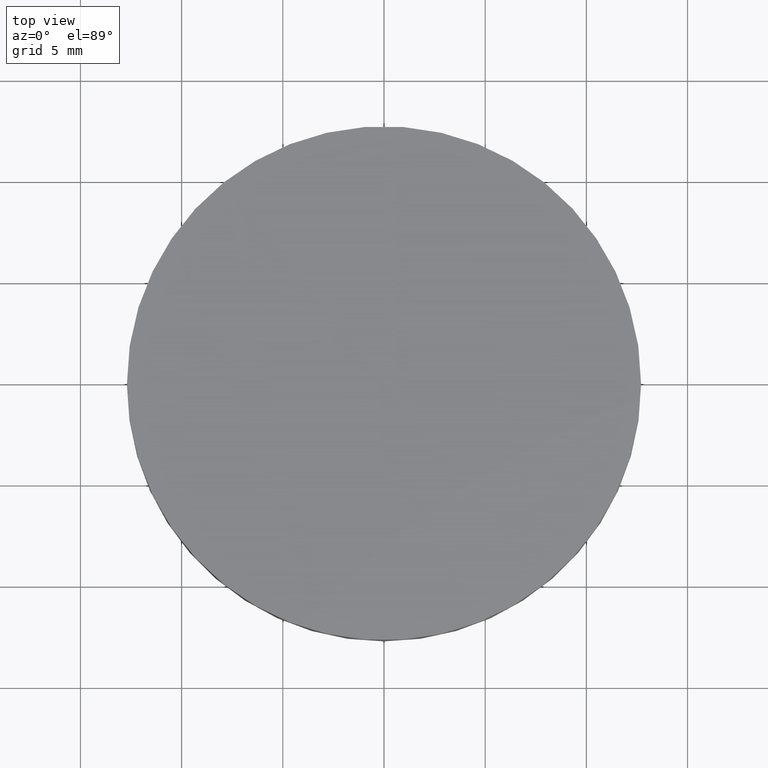
[diagram: clean part render]
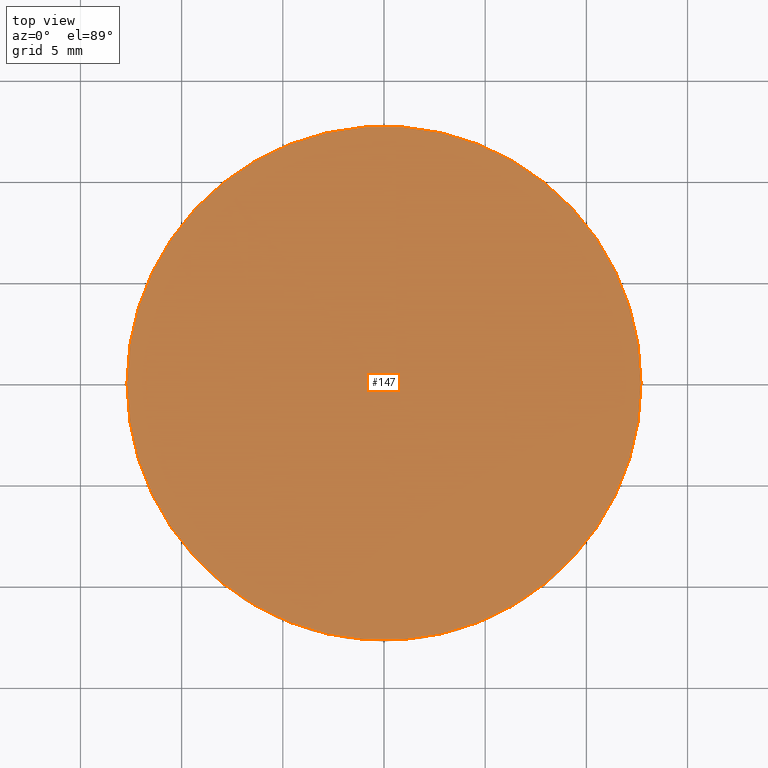
[diagram: same view with one face highlighted and labeled with its STEP entity id]
A machine part, top view. The second image highlights one B-rep face of the part: STEP entity #147.
In plain terms, the highlighted planar face has unit normal (0, 0, 1).
Its self-contained STEP definition (entity closure, byte-faithful):
#21 = AXIS2_PLACEMENT_3D ( 'NONE', #199, #182, #203 ) ;
#27 = DIRECTION ( 'NONE',  ( 1.000000000000000000, 0.0000000000000000000, -0.0000000000000000000 ) ) ;
#33 = CIRCLE ( 'NONE', #214, 12.69999999999999900 ) ;
#40 = EDGE_CURVE ( 'NONE', #232, #62, #219, .T. ) ;
#41 = EDGE_LOOP ( 'NONE', ( #202, #49 ) ) ;
#49 = ORIENTED_EDGE ( 'NONE', *, *, #40, .F. ) ;
#62 = VERTEX_POINT ( 'NONE', #95 ) ;
#68 = CARTESIAN_POINT ( 'NONE',  ( 4.996003610813200500E-016, 2.442490654175340100E-015, 4.000000000000000000 ) ) ;
#70 = PLANE ( 'NONE',  #177 ) ;
#85 = CARTESIAN_POINT ( 'NONE',  ( -12.69999999999999900, 3.997792089092478900E-015, 4.000000000000000000 ) ) ;
#95 = CARTESIAN_POINT ( 'NONE',  ( 12.69999999999999900, 2.442490654175340100E-015, 4.000000000000000000 ) ) ;
#100 = DIRECTION ( 'NONE',  ( -0.0000000000000000000, -0.0000000000000000000, -1.000000000000000000 ) ) ;
#120 = CARTESIAN_POINT ( 'NONE',  ( 0.0000000000000000000, 26.11199999999999800, 4.000000000000000000 ) ) ;
#147 = ADVANCED_FACE ( 'NONE', ( #176 ), #70, .T. ) ;
#154 = DIRECTION ( 'NONE',  ( 0.0000000000000000000, 0.0000000000000000000, 1.000000000000000000 ) ) ;
#155 = DIRECTION ( 'NONE',  ( 1.000000000000000000, 0.0000000000000000000, 0.0000000000000000000 ) ) ;
#161 = EDGE_CURVE ( 'NONE', #62, #232, #33, .T. ) ;
#176 = FACE_OUTER_BOUND ( 'NONE', #41, .T. ) ;
#177 = AXIS2_PLACEMENT_3D ( 'NONE', #120, #154, #27 ) ;
#182 = DIRECTION ( 'NONE',  ( -0.0000000000000000000, -0.0000000000000000000, -1.000000000000000000 ) ) ;
#199 = CARTESIAN_POINT ( 'NONE',  ( 4.996003610813200500E-016, 2.442490654175340100E-015, 4.000000000000000000 ) ) ;
#202 = ORIENTED_EDGE ( 'NONE', *, *, #161, .F. ) ;
#203 = DIRECTION ( 'NONE',  ( 1.000000000000000000, 0.0000000000000000000, 0.0000000000000000000 ) ) ;
#214 = AXIS2_PLACEMENT_3D ( 'NONE', #68, #100, #155 ) ;
#219 = CIRCLE ( 'NONE', #21, 12.69999999999999900 ) ;
#232 = VERTEX_POINT ( 'NONE', #85 ) ;